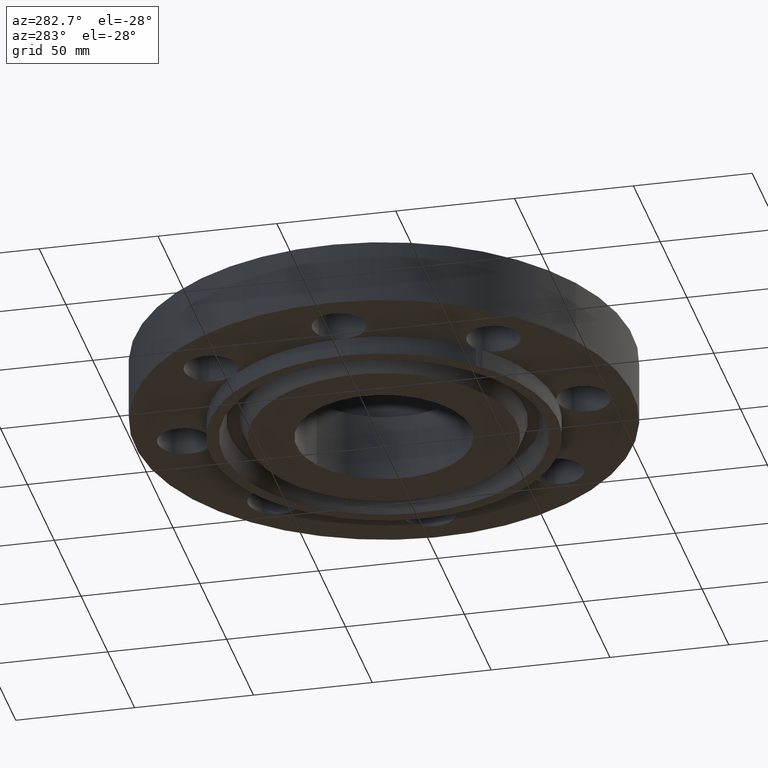
[diagram: clean part render]
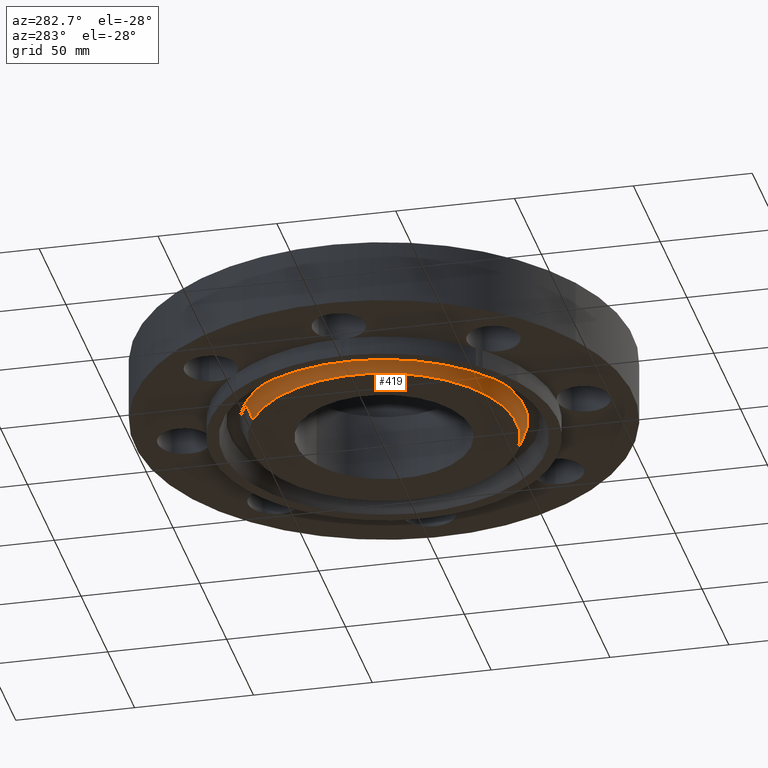
[diagram: same view with one face highlighted and labeled with its STEP entity id]
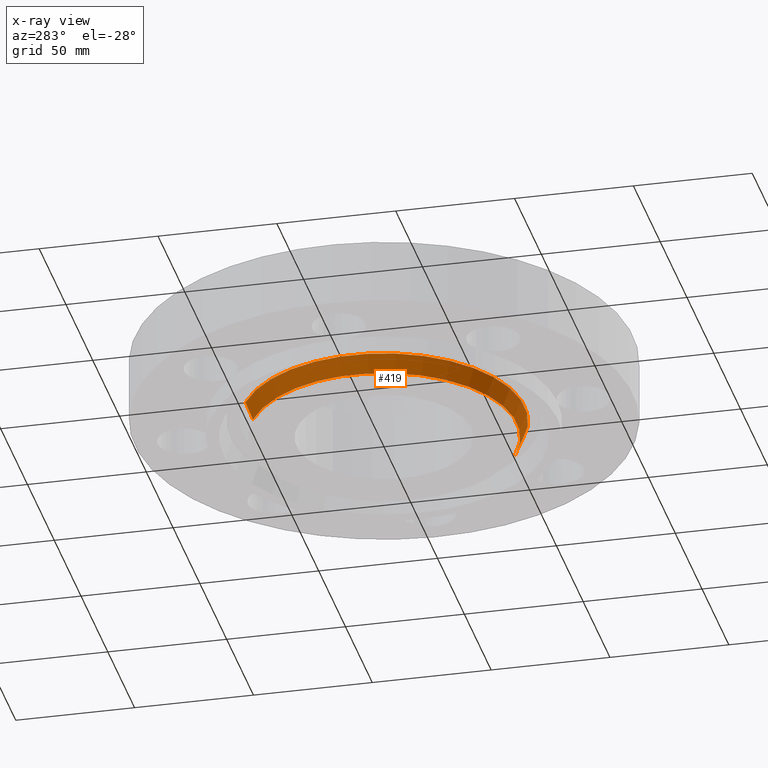
[diagram: x-ray of the same camera — body ghosted, the highlighted face saturated]
A machine part, auxiliary view. The second image highlights one B-rep face of the part: STEP entity #419.
The next image is the same camera in x-ray: the body ghosted, the highlighted face saturated — about 0% of this face is hidden behind the body in this view.
In plain terms, the highlighted conical surface has half-angle 23 deg.
Its self-contained STEP definition (entity closure, byte-faithful):
#284=AXIS2_PLACEMENT_3D('Circle Axis2P3D',#282,#283,$) ;
#406=AXIS2_PLACEMENT_3D('Cone Axis2P3D',#403,#404,#405) ;
#410=AXIS2_PLACEMENT_3D('Circle Axis2P3D',#408,#409,$) ;
#277=CARTESIAN_POINT('Vertex',(-1.05617446158,1.93331438389,-0.313000000001)) ;
#279=CARTESIAN_POINT('Vertex',(1.05617446158,-1.93331438387,-0.313000000001)) ;
#282=CARTESIAN_POINT('Axis2P3D Location',(-6.99353086378E-017,7.066543326E-012,-0.313000000001)) ;
#370=CARTESIAN_POINT('Line Origine',(-1.08610102335,1.98809458778,-0.16594366751)) ;
#374=CARTESIAN_POINT('Vertex',(-1.11602758515,2.0428747917,-0.0188873350178)) ;
#381=CARTESIAN_POINT('Vertex',(1.11602758515,-2.0428747917,-0.0188873350193)) ;
#384=CARTESIAN_POINT('Line Origine',(1.08610102335,-1.98809458778,-0.16594366751)) ;
#403=CARTESIAN_POINT('Axis2P3D Location',(0.,0.,-0.373000000001)) ;
#408=CARTESIAN_POINT('Axis2P3D Location',(0.,0.,-0.0188873350193)) ;
#283=DIRECTION('Axis2P3D Direction',(0.,0.,-0.0393700787402)) ;
#371=DIRECTION('Vector Direction',(-0.00737505833566,0.0134999537303,0.0362403485611)) ;
#385=DIRECTION('Vector Direction',(0.00737505833566,-0.0134999537303,0.0362403485611)) ;
#404=DIRECTION('Axis2P3D Direction',(0.,0.,0.0393700787402)) ;
#405=DIRECTION('Axis2P3D XDirection',(-0.0188750212049,0.0345504945626,0.)) ;
#409=DIRECTION('Axis2P3D Direction',(0.,0.,0.0393700787402)) ;
#372=VECTOR('Line Direction',#371,0.0393700787402) ;
#386=VECTOR('Line Direction',#385,0.0393700787402) ;
#414=ORIENTED_EDGE('',*,*,#388,.F.) ;
#415=ORIENTED_EDGE('',*,*,#412,.F.) ;
#416=ORIENTED_EDGE('',*,*,#376,.T.) ;
#417=ORIENTED_EDGE('',*,*,#286,.F.) ;
#419=ADVANCED_FACE('PartBody',(#418),#407,.T.) ;
#285=CIRCLE('generated circle',#284,2.20300000005) ;
#411=CIRCLE('generated circle',#410,2.32784341943) ;
#407=CONICAL_SURFACE('Cone',#406,2.17753151104,0.401425727959) ;
#286=EDGE_CURVE('',#280,#278,#285,.T.) ;
#376=EDGE_CURVE('',#375,#278,#373,.F.) ;
#388=EDGE_CURVE('',#382,#280,#387,.F.) ;
#412=EDGE_CURVE('',#375,#382,#411,.T.) ;
#413=EDGE_LOOP('',(#414,#415,#416,#417)) ;
#418=FACE_OUTER_BOUND('',#413,.T.) ;
#373=LINE('Line',#370,#372) ;
#387=LINE('Line',#384,#386) ;
#278=VERTEX_POINT('',#277) ;
#280=VERTEX_POINT('',#279) ;
#375=VERTEX_POINT('',#374) ;
#382=VERTEX_POINT('',#381) ;